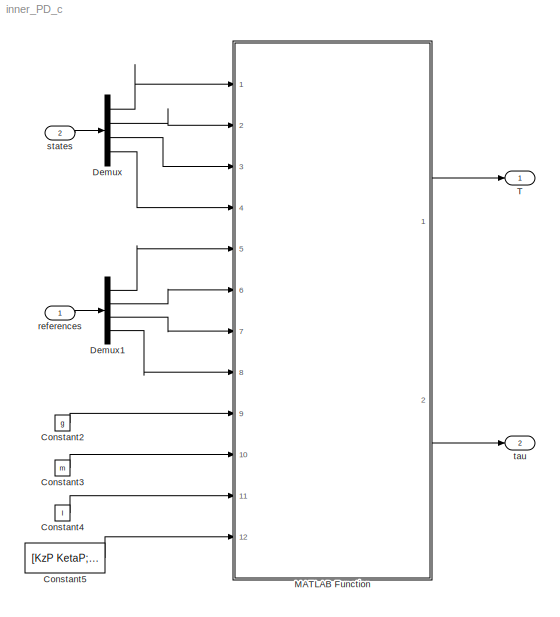
MODEL inner_PD_c
KIND model
BLOCK [Constant] Constant2
  SID = 9
  Value = g
BLOCK [Constant] Constant3
  SID = 11
  Value = m
BLOCK [Constant] Constant4
  SID = 12
  Value = I
BLOCK [Constant] Constant5
  SID = 28
  Value = [KzP KetaP; KzD KetaD]
BLOCK [Demux] Demux
  DisplayOption = bar
  Outputs = [3,3,3,3]
  Ports = [1, 4]
  SID = 32
BLOCK [Demux] Demux1
  DisplayOption = bar
  Outputs = [3,3,3,3]
  Ports = [1, 4]
  SID = 34
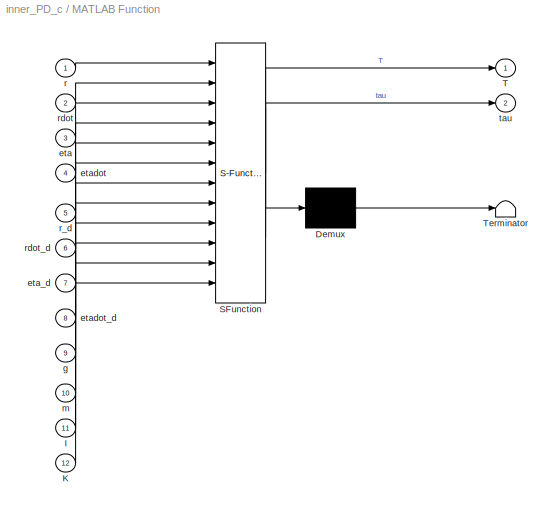
BLOCK [SubSystem] MATLAB Function
  ErrorFcn = Stateflow.Translate.translate
  MinAlgLoopOccurrences = on
  PermitHierarchicalResolution = ExplicitOnly
  Ports = [12, 2]
  RequestExecContextInheritance = off
  SFBlockType = MATLAB Function
  SID = 2
  TreatAsAtomicUnit = on
  Variant = off
BLOCK [Demux] MATLAB Function/ Demux 
  Outputs = 1
  Ports = [1, 1]
  SID = 2::34
BLOCK [S-Function] MATLAB Function/ SFunction 
  EnableBusSupport = on
  FunctionName = sf_sfun
  PortCounts = [12 3]
  Ports = [12, 3]
  SFunctionDeploymentMode = off
  SID = 2::33
  Tag = Stateflow S-Function inner_PD_c 2
BLOCK [Terminator] MATLAB Function/ Terminator 
  SID = 2::35
BLOCK [Inport] MATLAB Function/I
  IconDisplay = Port number
  Port = 11
  SID = 2::26
BLOCK [Inport] MATLAB Function/K
  IconDisplay = Port number
  Port = 12
  SID = 2::29
BLOCK [Outport] MATLAB Function/T
  IconDisplay = Port number
  SID = 2::5
BLOCK [Inport] MATLAB Function/eta
  IconDisplay = Port number
  Port = 3
  SID = 2::19
BLOCK [Inport] MATLAB Function/eta_d
  IconDisplay = Port number
  Port = 7
  SID = 2::27
BLOCK [Inport] MATLAB Function/etadot
  IconDisplay = Port number
  Port = 4
  SID = 2::21
BLOCK [Inport] MATLAB Function/etadot_d
  IconDisplay = Port number
  Port = 8
  SID = 2::28
BLOCK [Inport] MATLAB Function/g
  IconDisplay = Port number
  Port = 9
  SID = 2::24
BLOCK [Inport] MATLAB Function/m
  IconDisplay = Port number
  Port = 10
  SID = 2::25
BLOCK [Inport] MATLAB Function/r
  IconDisplay = Port number
  SID = 2::1
BLOCK [Inport] MATLAB Function/r_d
  IconDisplay = Port number
  Port = 5
  SID = 2::22
BLOCK [Inport] MATLAB Function/rdot
  IconDisplay = Port number
  Port = 2
  SID = 2::20
BLOCK [Inport] MATLAB Function/rdot_d
  IconDisplay = Port number
  Port = 6
  SID = 2::23
BLOCK [Outport] MATLAB Function/tau
  IconDisplay = Port number
  Port = 2
  SID = 2::36
BLOCK [Outport] T
  IconDisplay = Port number
  PortDimensions = 1
  SID = 24
BLOCK [Inport] references
  IconDisplay = Port number
  PortDimensions = 12
  SID = 33
BLOCK [Inport] states
  IconDisplay = Port number
  Port = 2
  PortDimensions = 12
  SID = 23
BLOCK [Outport] tau
  IconDisplay = Port number
  Port = 2
  PortDimensions = 3
  SID = 35
LINE Constant2:1 -> MATLAB Function:9
LINE Constant3:1 -> MATLAB Function:10
LINE Constant4:1 -> MATLAB Function:11
LINE Constant5:1 -> MATLAB Function:12
LINE Demux1:1 -> MATLAB Function:5
LINE Demux1:2 -> MATLAB Function:6
LINE Demux1:3 -> MATLAB Function:7
LINE Demux1:4 -> MATLAB Function:8
LINE Demux:1 -> MATLAB Function:1
LINE Demux:2 -> MATLAB Function:2
LINE Demux:3 -> MATLAB Function:3
LINE Demux:4 -> MATLAB Function:4
LINE MATLAB Function/ Demux :1 -> MATLAB Function/ Terminator :1
LINE MATLAB Function/ SFunction :1 -> MATLAB Function/ Demux :1
LINE MATLAB Function/ SFunction :2 -> MATLAB Function/T:1
LINE MATLAB Function/ SFunction :3 -> MATLAB Function/tau:1
LINE MATLAB Function/I:1 -> MATLAB Function/ SFunction :11
LINE MATLAB Function/K:1 -> MATLAB Function/ SFunction :12
LINE MATLAB Function/eta:1 -> MATLAB Function/ SFunction :3
LINE MATLAB Function/eta_d:1 -> MATLAB Function/ SFunction :7
LINE MATLAB Function/etadot:1 -> MATLAB Function/ SFunction :4
LINE MATLAB Function/etadot_d:1 -> MATLAB Function/ SFunction :8
LINE MATLAB Function/g:1 -> MATLAB Function/ SFunction :9
LINE MATLAB Function/m:1 -> MATLAB Function/ SFunction :10
LINE MATLAB Function/r:1 -> MATLAB Function/ SFunction :1
LINE MATLAB Function/r_d:1 -> MATLAB Function/ SFunction :5
LINE MATLAB Function/rdot:1 -> MATLAB Function/ SFunction :2
LINE MATLAB Function/rdot_d:1 -> MATLAB Function/ SFunction :6
LINE MATLAB Function:1 -> T:1
LINE MATLAB Function:2 -> tau:1
LINE references:1 -> Demux1:1
LINE states:1 -> Demux:1
CHART MATLAB Function states=1 transitions=1
  STATE_LABEL 'eML_blk_kernel()'
